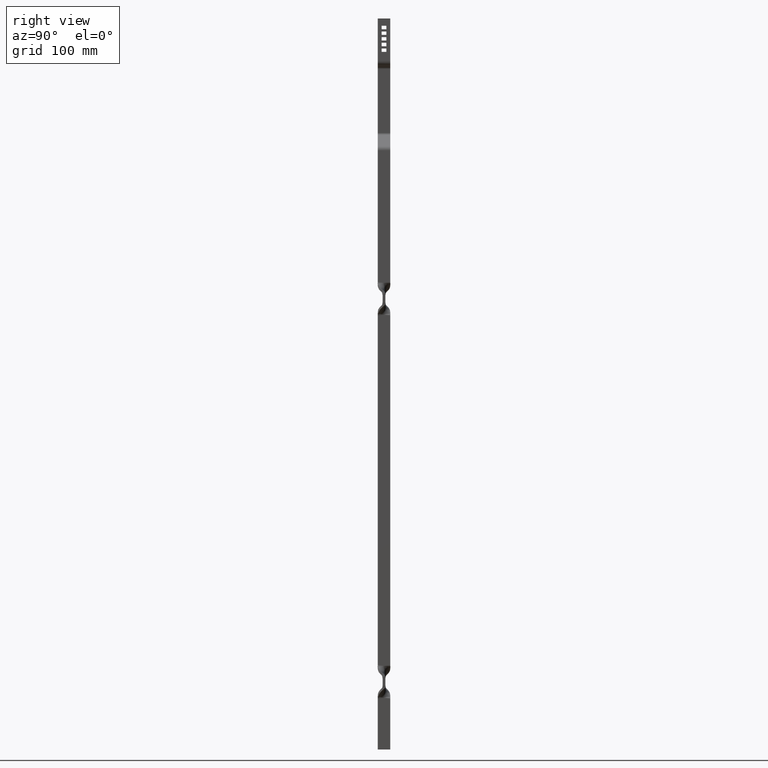
[diagram: clean part render]
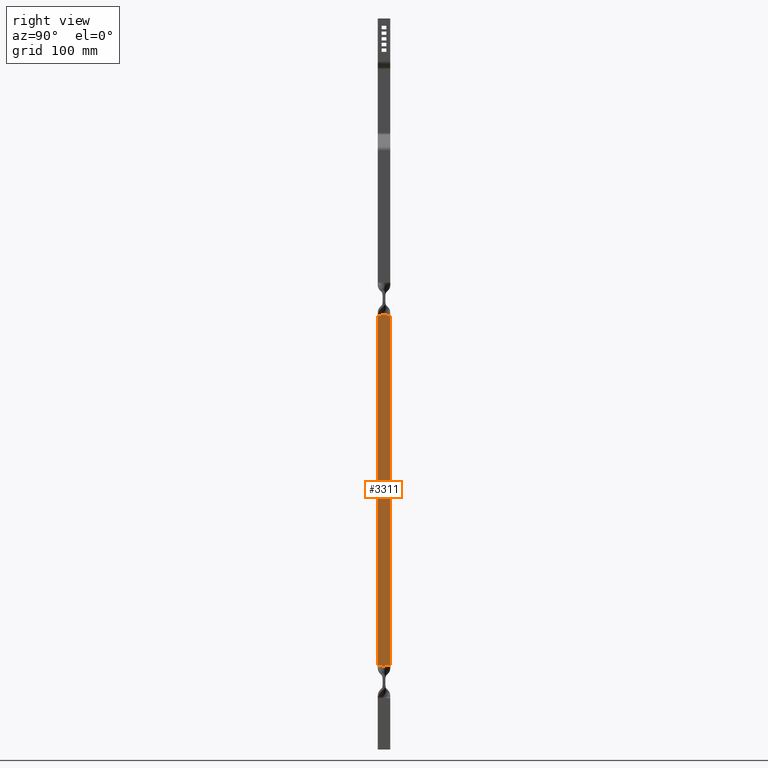
[diagram: same view with one face highlighted and labeled with its STEP entity id]
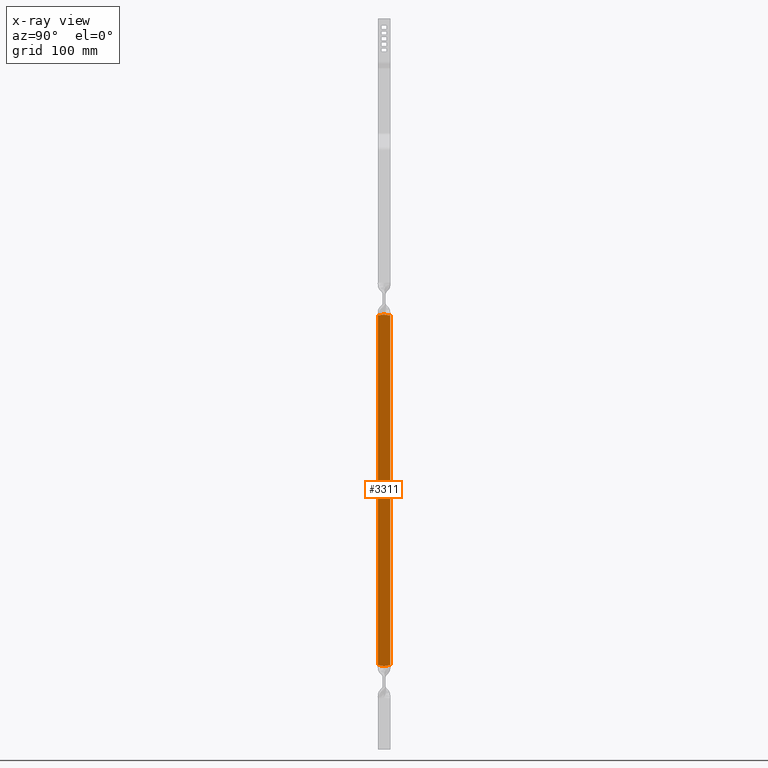
[diagram: x-ray of the same camera — body ghosted, the highlighted face saturated]
A machine part, right view. The second image highlights one B-rep face of the part: STEP entity #3311.
The next image is the same camera in x-ray: the body ghosted, the highlighted face saturated — about 0% of this face is hidden behind the body in this view.
In plain terms, the highlighted face is a freeform B-spline surface patch.
Its self-contained STEP definition (entity closure, byte-faithful):
#711=CARTESIAN_POINT('',(13.499999999008899,-0.271775746197522,-708.499999999864030));
#712=VERTEX_POINT('',#711);
#713=CARTESIAN_POINT('',(13.499999999008899,7.0,-707.289823196502990));
#714=VERTEX_POINT('',#713);
#715=CARTESIAN_POINT('',(13.499999999008899,-0.271775746197522,-708.499999999864030));
#716=CARTESIAN_POINT('',(13.499999999008899,0.331128127782272,-708.381854257062970));
#717=CARTESIAN_POINT('',(13.499999999009029,0.934187228533641,-708.262608898219130));
#718=CARTESIAN_POINT('',(13.499999999009020,2.141573673663310,-708.032512671273710));
#719=CARTESIAN_POINT('',(13.499999999008800,2.746067613781824,-707.921779651187990));
#720=CARTESIAN_POINT('',(13.499999999008800,3.957689163504624,-707.715155315289850));
#721=CARTESIAN_POINT('',(13.499999999009150,4.564574697422978,-707.619239177645800));
#722=CARTESIAN_POINT('',(13.499999999009161,5.780642736221902,-707.443213670152430));
#723=CARTESIAN_POINT('',(13.499999999008899,6.389812878262637,-707.363019224548110));
#724=CARTESIAN_POINT('',(13.499999999008899,7.0,-707.289823196502990));
#725=B_SPLINE_CURVE_WITH_KNOTS('',3,(#715,#716,#717,#718,#719,#720,#721,#722,#723,#724),.UNSPECIFIED.,.F.,.U.,(4,2,2,2,4),(0.0,0.250000000000000,0.500000000000000,0.750000000000000,1.0),.UNSPECIFIED.);
#726=EDGE_CURVE('',#712,#714,#725,.T.);
#852=CARTESIAN_POINT('',(13.499999999008899,-7.0,-707.313138850674930));
#853=VERTEX_POINT('',#852);
#854=CARTESIAN_POINT('',(13.499999999008899,-7.0,-707.313138850674930));
#855=CARTESIAN_POINT('',(13.499999999008899,-6.434661942420412,-707.383037198176910));
#856=CARTESIAN_POINT('',(13.499999999009180,-5.870317070303737,-707.459521843228000));
#857=CARTESIAN_POINT('',(13.499999999009180,-4.743981124619481,-707.628100320326550));
#858=CARTESIAN_POINT('',(13.499999999009010,-4.182003036704277,-707.720280266573130));
#859=CARTESIAN_POINT('',(13.499999999009010,-3.060551510623165,-707.921249713999370));
#860=CARTESIAN_POINT('',(13.499999999008949,-2.501416190539963,-708.030179163642290));
#861=CARTESIAN_POINT('',(13.499999999008960,-1.385497779137043,-708.259857803104980));
#862=CARTESIAN_POINT('',(13.499999999008899,-0.828537395533882,-708.380505590313420));
#863=CARTESIAN_POINT('',(13.499999999008899,-0.271775746197522,-708.499999999864030));
#864=B_SPLINE_CURVE_WITH_KNOTS('',3,(#854,#855,#856,#857,#858,#859,#860,#861,#862,#863),.UNSPECIFIED.,.F.,.U.,(4,2,2,2,4),(0.0,0.250000000000000,0.500000000000000,0.750000000000000,1.0),.UNSPECIFIED.);
#865=EDGE_CURVE('',#853,#712,#864,.T.);
#1136=CARTESIAN_POINT('',(13.499999999998799,-0.271775746182220,-318.499999999941000));
#1137=VERTEX_POINT('',#1136);
#1138=CARTESIAN_POINT('',(13.499999999008880,-7.0,-319.686861148979970));
#1139=VERTEX_POINT('',#1138);
#1140=CARTESIAN_POINT('',(13.499999999998799,-0.271775746182220,-318.499999999941000));
#1141=CARTESIAN_POINT('',(13.499999999008880,-0.828536332770063,-318.619493321116410));
#1142=CARTESIAN_POINT('',(13.499999999008930,-1.385487363985525,-318.740140034443810));
#1143=CARTESIAN_POINT('',(13.499999999008921,-2.501421362468829,-318.969821918338880));
#1144=CARTESIAN_POINT('',(13.499999999008899,-3.060560236290537,-319.078751923775430));
#1145=CARTESIAN_POINT('',(13.499999999008910,-4.182009288088913,-319.279720778721530));
#1146=CARTESIAN_POINT('',(13.499999999008990,-4.743986133490062,-319.371900464358990));
#1147=CARTESIAN_POINT('',(13.499999999008990,-5.870319582568508,-319.540478497019310));
#1148=CARTESIAN_POINT('',(13.499999999008880,-6.434663200772619,-319.616962957052810));
#1149=CARTESIAN_POINT('',(13.499999999008880,-7.0,-319.686861148979970));
#1150=B_SPLINE_CURVE_WITH_KNOTS('',3,(#1140,#1141,#1142,#1143,#1144,#1145,#1146,#1147,#1148,#1149),.UNSPECIFIED.,.F.,.U.,(4,2,2,2,4),(0.0,0.250000000000000,0.500000000000000,0.750000000000000,1.0),.UNSPECIFIED.);
#1151=EDGE_CURVE('',#1137,#1139,#1150,.T.);
#1284=CARTESIAN_POINT('',(13.499999999008880,7.0,-319.710176803404010));
#1285=VERTEX_POINT('',#1284);
#1286=CARTESIAN_POINT('',(13.499999999008880,7.0,-319.710176803404010));
#1287=CARTESIAN_POINT('',(13.499999999008880,6.389812878269172,-319.636980775368730));
#1288=CARTESIAN_POINT('',(13.499999999008820,5.780642736234402,-319.556786329776120));
#1289=CARTESIAN_POINT('',(13.499999999008820,4.564574697445322,-319.380760822318110));
#1290=CARTESIAN_POINT('',(13.499999999008820,3.957689163530951,-319.284844684696400));
#1291=CARTESIAN_POINT('',(13.499999999008820,2.746067613810590,-319.078220348877490));
#1292=CARTESIAN_POINT('',(13.499999999008860,2.141573673692420,-318.967487328831680));
#1293=CARTESIAN_POINT('',(13.499999999008860,0.934187228519392,-318.737391102201170));
#1294=CARTESIAN_POINT('',(13.499999999008949,0.331127845947986,-318.618147180884820));
#1295=CARTESIAN_POINT('',(13.499999999998799,-0.271775746182220,-318.499999999941000));
#1296=B_SPLINE_CURVE_WITH_KNOTS('',3,(#1286,#1287,#1288,#1289,#1290,#1291,#1292,#1293,#1294,#1295),.UNSPECIFIED.,.F.,.U.,(4,2,2,2,4),(0.0,0.250000000000000,0.500000000000000,0.750000000000000,1.0),.UNSPECIFIED.);
#1297=EDGE_CURVE('',#1285,#1137,#1296,.T.);
#3247=CARTESIAN_POINT('',(13.499999999008880,7.0,-319.710176803404010));
#3248=CARTESIAN_POINT('',(13.499999999008899,7.0,-707.289823196502990));
#3249=QUASI_UNIFORM_CURVE('',1,(#3247,#3248),.UNSPECIFIED.,.F.,.U.);
#3250=EDGE_CURVE('',#1285,#714,#3249,.T.);
#3283=CARTESIAN_POINT('',(13.499999999008880,-7.0,-319.686861148979970));
#3284=CARTESIAN_POINT('',(13.499999999008899,-7.0,-707.313138850674930));
#3285=QUASI_UNIFORM_CURVE('',1,(#3283,#3284),.UNSPECIFIED.,.F.,.U.);
#3286=EDGE_CURVE('',#1139,#853,#3285,.T.);
#3298=CARTESIAN_POINT('',(13.499999999008880,-7.699299972865286,-299.019500755840510));
#3299=CARTESIAN_POINT('',(13.499999999008880,-7.699299972865286,-727.980509704579620));
#3300=CARTESIAN_POINT('',(13.499999999008880,7.699300348374547,-299.019500755840510));
#3301=CARTESIAN_POINT('',(13.499999999008880,7.699300348374547,-727.980509704579620));
#3302=B_SPLINE_SURFACE_WITH_KNOTS('',1,1,((#3298,#3300),(#3299,#3301)),.UNSPECIFIED.,.F.,.F.,.U.,(2,2),(2,2),(0.0,428.961008948739110),(0.0,15.398600321239829),.UNSPECIFIED.);
#3303=ORIENTED_EDGE('',*,*,#3286,.T.);
#3304=ORIENTED_EDGE('',*,*,#865,.T.);
#3305=ORIENTED_EDGE('',*,*,#726,.T.);
#3306=ORIENTED_EDGE('',*,*,#3250,.F.);
#3307=ORIENTED_EDGE('',*,*,#1297,.T.);
#3308=ORIENTED_EDGE('',*,*,#1151,.T.);
#3309=EDGE_LOOP('',(#3303,#3304,#3305,#3306,#3307,#3308));
#3310=FACE_OUTER_BOUND('',#3309,.T.);
#3311=ADVANCED_FACE('',(#3310),#3302,.T.);